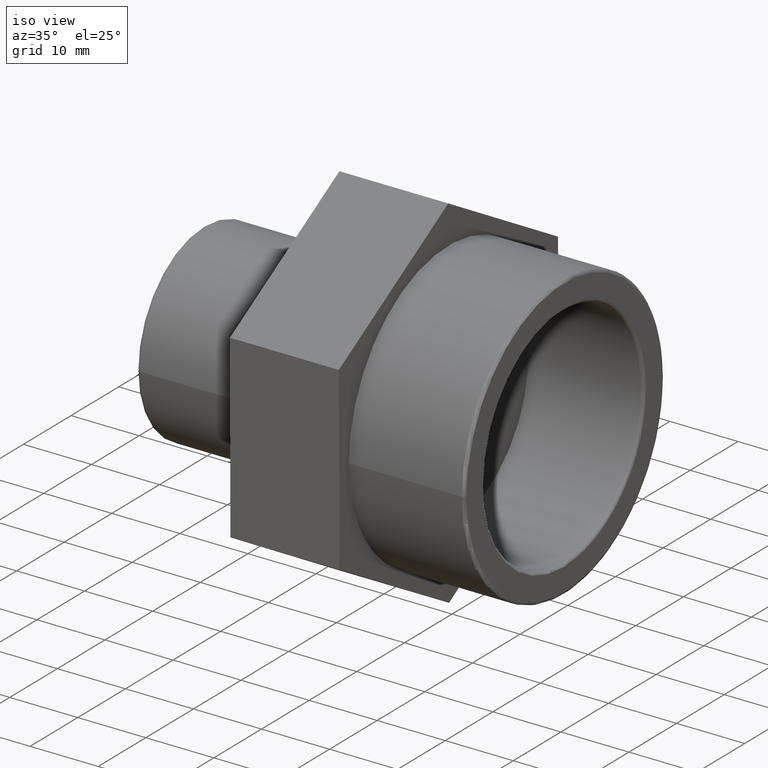
[diagram: clean part render]
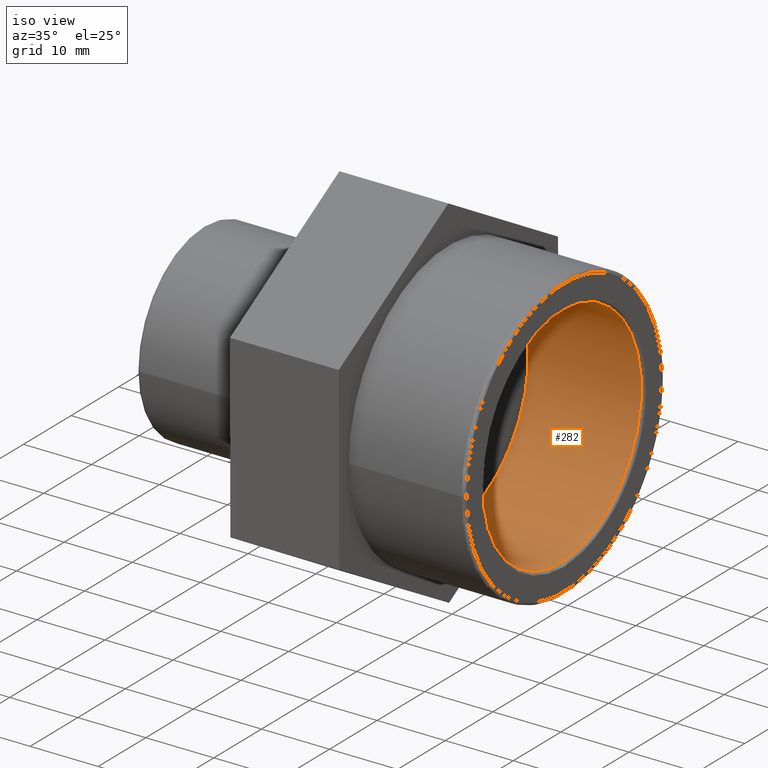
[diagram: same view with one face highlighted and labeled with its STEP entity id]
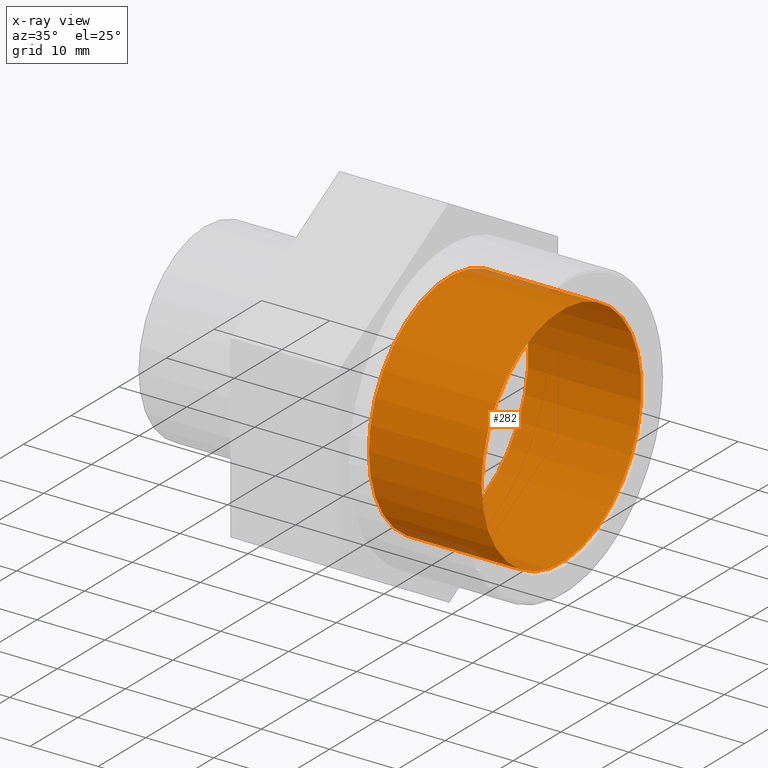
[diagram: x-ray of the same camera — body ghosted, the highlighted face saturated]
A machine part, iso view. The second image highlights one B-rep face of the part: STEP entity #282.
The next image is the same camera in x-ray: the body ghosted, the highlighted face saturated — about 2% of this face is hidden behind the body in this view.
In plain terms, the highlighted cylindrical surface (bore or boss wall) has radius 16.764 mm, axis along (-1, -0, 0).
Its self-contained STEP definition (entity closure, byte-faithful):
#51=CYLINDRICAL_SURFACE('',#308,16.764);
#70=FACE_BOUND('',#109,.T.);
#85=FACE_OUTER_BOUND('',#108,.T.);
#108=EDGE_LOOP('',(#216));
#109=EDGE_LOOP('',(#217));
#140=CIRCLE('',#304,16.764);
#143=CIRCLE('',#309,16.764);
#154=VERTEX_POINT('',#430);
#157=VERTEX_POINT('',#438);
#180=EDGE_CURVE('',#154,#154,#140,.T.);
#183=EDGE_CURVE('',#157,#157,#143,.T.);
#216=ORIENTED_EDGE('',*,*,#183,.T.);
#217=ORIENTED_EDGE('',*,*,#180,.F.);
#282=ADVANCED_FACE('',(#85,#70),#51,.F.);
#304=AXIS2_PLACEMENT_3D('',#431,#342,#343);
#308=AXIS2_PLACEMENT_3D('',#437,#350,#351);
#309=AXIS2_PLACEMENT_3D('',#439,#352,#353);
#342=DIRECTION('center_axis',(-1.,-1.83697019872103E-16,0.));
#343=DIRECTION('ref_axis',(-1.82123199577617E-16,1.,6.12323399573677E-17));
#350=DIRECTION('center_axis',(-1.,-1.83697019872103E-16,0.));
#351=DIRECTION('ref_axis',(2.38360372416973E-16,-1.,0.));
#352=DIRECTION('center_axis',(-1.,-1.83697019872103E-16,0.));
#353=DIRECTION('ref_axis',(0.,0.,1.));
#430=CARTESIAN_POINT('',(26.0809,-16.764,1.02649894704531E-15));
#431=CARTESIAN_POINT('Origin',(26.0809,9.65895463219306E-15,0.));
#437=CARTESIAN_POINT('Origin',(18.,8.17451738430859E-15,0.));
#438=CARTESIAN_POINT('',(9.50000000000001,-16.764,0.));
#439=CARTESIAN_POINT('Origin',(9.5,6.61309271539571E-15,0.));